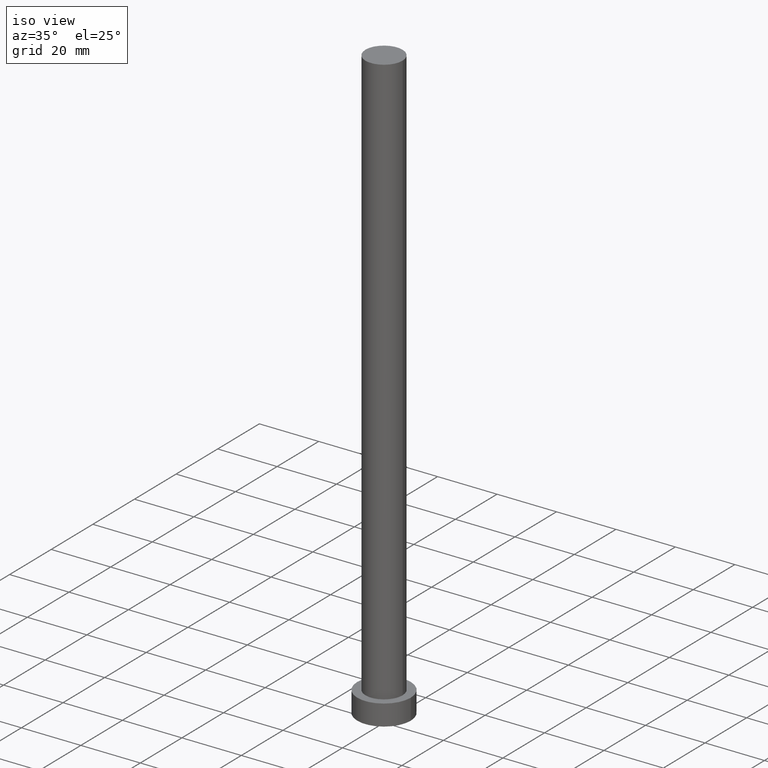
[diagram: clean part render]
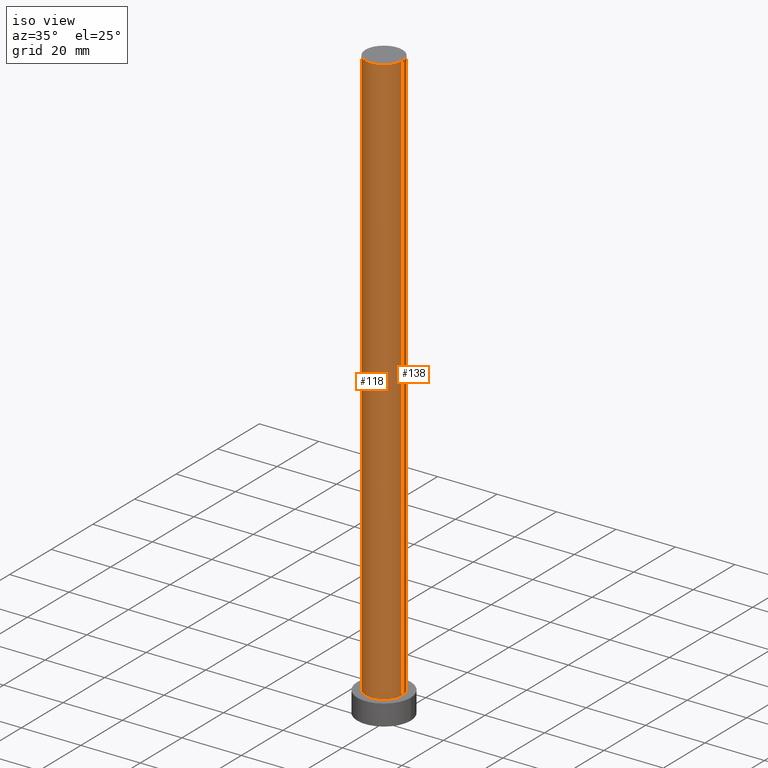
[diagram: same view with one multi-face feature highlighted, each face labeled with its STEP entity id]
A machine part, iso view. The highlighted faces form ONE feature: a constant-radius fillet chain: 2 tangent blend faces with common blend radius 6.25 mm. The faces share edges in the B-rep.
Their STEP definitions:
[1] entity #138 (Cylinder):
#9 = LINE ( 'NONE', #11, #250 ) ;
#11 = CARTESIAN_POINT ( 'NONE',  ( 6.250000000000000000, 7.654042494670957606E-16, 200.0000000000000000 ) ) ;
#23 = CARTESIAN_POINT ( 'NONE',  ( 6.250000000000000000, 7.654042494670957606E-16, 7.000000000000000000 ) ) ;
#30 = DIRECTION ( 'NONE',  ( -0.000000000000000000, -0.000000000000000000, -1.000000000000000000 ) ) ;
#45 = ORIENTED_EDGE ( 'NONE', *, *, #203, .T. ) ;
#47 = AXIS2_PLACEMENT_3D ( 'NONE', #233, #60, #163 ) ;
#53 = CARTESIAN_POINT ( 'NONE',  ( -6.250000000000000000, 0.000000000000000000, 7.000000000000000000 ) ) ;
#59 = LINE ( 'NONE', #172, #213 ) ;
#60 = DIRECTION ( 'NONE',  ( 0.000000000000000000, 0.000000000000000000, 1.000000000000000000 ) ) ;
#61 = AXIS2_PLACEMENT_3D ( 'NONE', #220, #84, #67 ) ;
#67 = DIRECTION ( 'NONE',  ( -1.000000000000000000, 0.000000000000000000, 0.000000000000000000 ) ) ;
#69 = VERTEX_POINT ( 'NONE', #78 ) ;
#70 = ORIENTED_EDGE ( 'NONE', *, *, #248, .F. ) ;
#78 = CARTESIAN_POINT ( 'NONE',  ( 6.250000000000000000, 7.654042494670957606E-16, 200.0000000000000000 ) ) ;
#84 = DIRECTION ( 'NONE',  ( -0.000000000000000000, -0.000000000000000000, -1.000000000000000000 ) ) ;
#94 = EDGE_CURVE ( 'NONE', #69, #121, #133, .T. ) ;
#104 = AXIS2_PLACEMENT_3D ( 'NONE', #154, #227, #176 ) ;
#105 = EDGE_LOOP ( 'NONE', ( #143, #45, #254, #70 ) ) ;
#119 = FACE_OUTER_BOUND ( 'NONE', #105, .T. ) ;
#121 = VERTEX_POINT ( 'NONE', #187 ) ;
#133 = CIRCLE ( 'NONE', #47, 6.250000000000000000 ) ;
#138 = ADVANCED_FACE ( 'NONE', ( #119 ), #216, .T. ) ;
#143 = ORIENTED_EDGE ( 'NONE', *, *, #94, .F. ) ;
#154 = CARTESIAN_POINT ( 'NONE',  ( 0.000000000000000000, 0.000000000000000000, 7.000000000000000000 ) ) ;
#160 = DIRECTION ( 'NONE',  ( -0.000000000000000000, -0.000000000000000000, -1.000000000000000000 ) ) ;
#163 = DIRECTION ( 'NONE',  ( 1.000000000000000000, 0.000000000000000000, 0.000000000000000000 ) ) ;
#168 = VERTEX_POINT ( 'NONE', #23 ) ;
#172 = CARTESIAN_POINT ( 'NONE',  ( -6.250000000000000000, 0.000000000000000000, 200.0000000000000000 ) ) ;
#176 = DIRECTION ( 'NONE',  ( 1.000000000000000000, 0.000000000000000000, 0.000000000000000000 ) ) ;
#180 = CIRCLE ( 'NONE', #104, 6.250000000000000000 ) ;
#187 = CARTESIAN_POINT ( 'NONE',  ( -6.250000000000000000, 0.000000000000000000, 200.0000000000000000 ) ) ;
#199 = VERTEX_POINT ( 'NONE', #53 ) ;
#203 = EDGE_CURVE ( 'NONE', #69, #168, #9, .T. ) ;
#206 = EDGE_CURVE ( 'NONE', #168, #199, #180, .T. ) ;
#213 = VECTOR ( 'NONE', #160, 1000.000000000000000 ) ;
#216 = CYLINDRICAL_SURFACE ( 'NONE', #61, 6.250000000000000000 ) ;
#220 = CARTESIAN_POINT ( 'NONE',  ( 0.000000000000000000, 0.000000000000000000, 200.0000000000000000 ) ) ;
#227 = DIRECTION ( 'NONE',  ( 0.000000000000000000, 0.000000000000000000, 1.000000000000000000 ) ) ;
#233 = CARTESIAN_POINT ( 'NONE',  ( 0.000000000000000000, 0.000000000000000000, 200.0000000000000000 ) ) ;
#248 = EDGE_CURVE ( 'NONE', #121, #199, #59, .T. ) ;
#250 = VECTOR ( 'NONE', #30, 1000.000000000000000 ) ;
#254 = ORIENTED_EDGE ( 'NONE', *, *, #206, .T. ) ;
[2] entity #118 (Cylinder):
#5 = CARTESIAN_POINT ( 'NONE',  ( 0.000000000000000000, 0.000000000000000000, 200.0000000000000000 ) ) ;
#9 = LINE ( 'NONE', #11, #250 ) ;
#11 = CARTESIAN_POINT ( 'NONE',  ( 6.250000000000000000, 7.654042494670957606E-16, 200.0000000000000000 ) ) ;
#18 = ORIENTED_EDGE ( 'NONE', *, *, #203, .F. ) ;
#22 = ORIENTED_EDGE ( 'NONE', *, *, #147, .F. ) ;
#23 = CARTESIAN_POINT ( 'NONE',  ( 6.250000000000000000, 7.654042494670957606E-16, 7.000000000000000000 ) ) ;
#29 = CYLINDRICAL_SURFACE ( 'NONE', #31, 6.250000000000000000 ) ;
#30 = DIRECTION ( 'NONE',  ( -0.000000000000000000, -0.000000000000000000, -1.000000000000000000 ) ) ;
#31 = AXIS2_PLACEMENT_3D ( 'NONE', #5, #44, #100 ) ;
#35 = CIRCLE ( 'NONE', #42, 6.250000000000000000 ) ;
#42 = AXIS2_PLACEMENT_3D ( 'NONE', #161, #122, #182 ) ;
#44 = DIRECTION ( 'NONE',  ( -0.000000000000000000, -0.000000000000000000, -1.000000000000000000 ) ) ;
#53 = CARTESIAN_POINT ( 'NONE',  ( -6.250000000000000000, 0.000000000000000000, 7.000000000000000000 ) ) ;
#59 = LINE ( 'NONE', #172, #213 ) ;
#69 = VERTEX_POINT ( 'NONE', #78 ) ;
#78 = CARTESIAN_POINT ( 'NONE',  ( 6.250000000000000000, 7.654042494670957606E-16, 200.0000000000000000 ) ) ;
#79 = ORIENTED_EDGE ( 'NONE', *, *, #248, .T. ) ;
#89 = EDGE_LOOP ( 'NONE', ( #18, #22, #79, #95 ) ) ;
#91 = DIRECTION ( 'NONE',  ( 1.000000000000000000, 0.000000000000000000, 0.000000000000000000 ) ) ;
#95 = ORIENTED_EDGE ( 'NONE', *, *, #181, .T. ) ;
#100 = DIRECTION ( 'NONE',  ( -1.000000000000000000, 0.000000000000000000, 0.000000000000000000 ) ) ;
#117 = CARTESIAN_POINT ( 'NONE',  ( 0.000000000000000000, 0.000000000000000000, 200.0000000000000000 ) ) ;
#118 = ADVANCED_FACE ( 'NONE', ( #167 ), #29, .T. ) ;
#121 = VERTEX_POINT ( 'NONE', #187 ) ;
#122 = DIRECTION ( 'NONE',  ( 0.000000000000000000, 0.000000000000000000, 1.000000000000000000 ) ) ;
#147 = EDGE_CURVE ( 'NONE', #121, #69, #177, .T. ) ;
#160 = DIRECTION ( 'NONE',  ( -0.000000000000000000, -0.000000000000000000, -1.000000000000000000 ) ) ;
#161 = CARTESIAN_POINT ( 'NONE',  ( 0.000000000000000000, 0.000000000000000000, 7.000000000000000000 ) ) ;
#167 = FACE_OUTER_BOUND ( 'NONE', #89, .T. ) ;
#168 = VERTEX_POINT ( 'NONE', #23 ) ;
#172 = CARTESIAN_POINT ( 'NONE',  ( -6.250000000000000000, 0.000000000000000000, 200.0000000000000000 ) ) ;
#177 = CIRCLE ( 'NONE', #234, 6.250000000000000000 ) ;
#181 = EDGE_CURVE ( 'NONE', #199, #168, #35, .T. ) ;
#182 = DIRECTION ( 'NONE',  ( 1.000000000000000000, 0.000000000000000000, 0.000000000000000000 ) ) ;
#187 = CARTESIAN_POINT ( 'NONE',  ( -6.250000000000000000, 0.000000000000000000, 200.0000000000000000 ) ) ;
#198 = DIRECTION ( 'NONE',  ( 0.000000000000000000, 0.000000000000000000, 1.000000000000000000 ) ) ;
#199 = VERTEX_POINT ( 'NONE', #53 ) ;
#203 = EDGE_CURVE ( 'NONE', #69, #168, #9, .T. ) ;
#213 = VECTOR ( 'NONE', #160, 1000.000000000000000 ) ;
#234 = AXIS2_PLACEMENT_3D ( 'NONE', #117, #198, #91 ) ;
#248 = EDGE_CURVE ( 'NONE', #121, #199, #59, .T. ) ;
#250 = VECTOR ( 'NONE', #30, 1000.000000000000000 ) ;